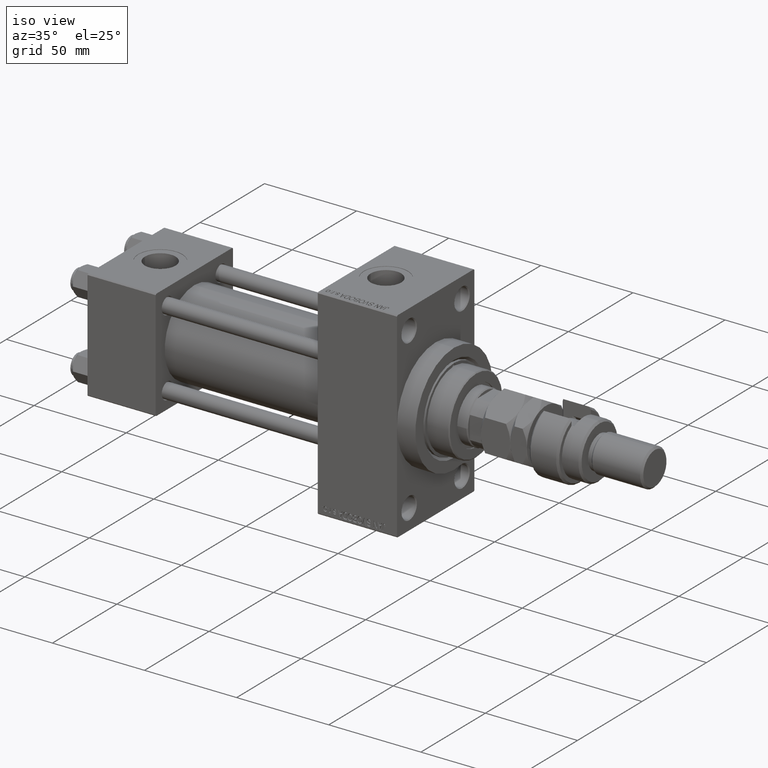
[diagram: clean part render]
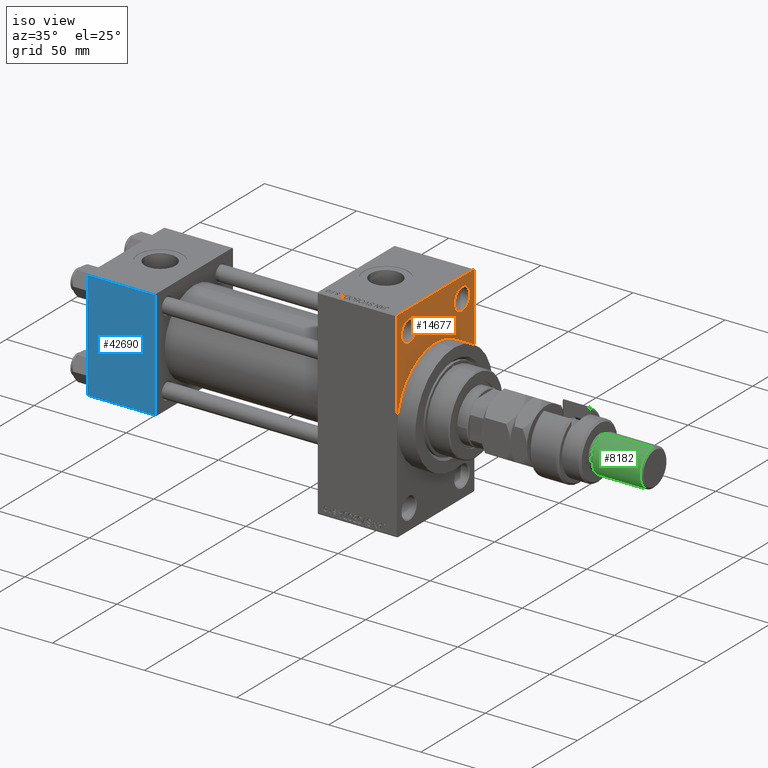
[diagram: same view with three faces highlighted in distinct colors, each labeled with its STEP entity id]
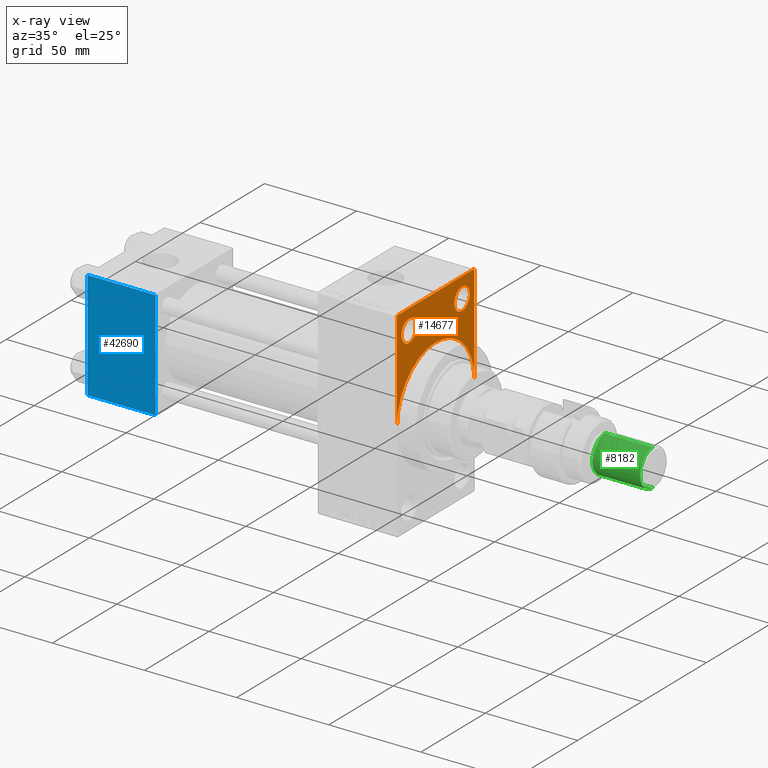
[diagram: x-ray of the same camera — body ghosted, the three highlighted faces saturated]
A machine part, iso view with three faces highlighted in distinct colors.
The next image is the same camera in x-ray (body ghosted, the three faces saturated) — at least one of them is partly hidden behind the body in this view.
Their STEP definitions:

[orange] entity #14677 — the highlighted planar face has unit normal (-1, 0, 0).
#308 = LINE ( 'NONE', #8523, #50527 ) ;
#1010 = EDGE_CURVE ( 'NONE', #13850, #32853, #50702, .T. ) ;
#1269 = CIRCLE ( 'NONE', #48655, 5.999999999999977796 ) ;
#1291 = VERTEX_POINT ( 'NONE', #45698 ) ;
#1770 = FACE_BOUND ( 'NONE', #16358, .T. ) ;
#3155 = CARTESIAN_POINT ( 'NONE',  ( 167.9999999999999716, 29.99999999999999645, 53.99999999999999289 ) ) ;
#4180 = CARTESIAN_POINT ( 'NONE',  ( 167.9999999999999716, 30.00000000000000000, 0.000000000000000000 ) ) ;
#4357 = DIRECTION ( 'NONE',  ( -1.000000000000000000, 0.000000000000000000, -0.000000000000000000 ) ) ;
#4601 = CIRCLE ( 'NONE', #26575, 5.999999999999977796 ) ;
#4877 = ORIENTED_EDGE ( 'NONE', *, *, #14673, .F. ) ;
#5125 = DIRECTION ( 'NONE',  ( 0.000000000000000000, -1.000000000000000000, 1.156482317317871478E-16 ) ) ;
#5320 = CIRCLE ( 'NONE', #49370, 5.999999999999977796 ) ;
#5382 = CARTESIAN_POINT ( 'NONE',  ( 167.9999999999999716, 29.99999999999999645, 54.49999999999999289 ) ) ;
#5755 = FACE_OUTER_BOUND ( 'NONE', #22417, .T. ) ;
#5840 = VECTOR ( 'NONE', #40932, 1000.000000000000000 ) ;
#6457 = AXIS2_PLACEMENT_3D ( 'NONE', #45786, #42597, #49756 ) ;
#6799 = VERTEX_POINT ( 'NONE', #11775 ) ;
#6861 = VERTEX_POINT ( 'NONE', #30001 ) ;
#6940 = DIRECTION ( 'NONE',  ( -0.000000000000000000, -0.7071067811865451302, -0.7071067811865500152 ) ) ;
#7407 = EDGE_CURVE ( 'NONE', #25722, #6861, #4601, .T. ) ;
#7445 = ORIENTED_EDGE ( 'NONE', *, *, #52254, .T. ) ;
#7814 = ORIENTED_EDGE ( 'NONE', *, *, #51615, .T. ) ;
#8336 = CARTESIAN_POINT ( 'NONE',  ( 167.9999999999999716, -20.50000000000000000, 43.50000000000000000 ) ) ;
#8523 = CARTESIAN_POINT ( 'NONE',  ( 167.9999999999999716, -30.00000000000000000, 54.50000000000000000 ) ) ;
#9322 = EDGE_CURVE ( 'NONE', #33347, #13850, #41693, .T. ) ;
#9326 = DIRECTION ( 'NONE',  ( 0.000000000000000000, 0.000000000000000000, -1.000000000000000000 ) ) ;
#9857 = CIRCLE ( 'NONE', #6457, 30.00000000000000000 ) ;
#10254 = CARTESIAN_POINT ( 'NONE',  ( 167.9999999999999716, 0.000000000000000000, 0.000000000000000000 ) ) ;
#11717 = DIRECTION ( 'NONE',  ( -1.000000000000000000, 0.000000000000000000, -0.000000000000000000 ) ) ;
#11775 = CARTESIAN_POINT ( 'NONE',  ( 167.9999999999999716, 0.000000000000000000, 30.00000000000000000 ) ) ;
#12342 = VERTEX_POINT ( 'NONE', #4180 ) ;
#13062 = ORIENTED_EDGE ( 'NONE', *, *, #7407, .T. ) ;
#13486 = DIRECTION ( 'NONE',  ( -1.000000000000000000, 0.000000000000000000, -0.000000000000000000 ) ) ;
#13850 = VERTEX_POINT ( 'NONE', #29851 ) ;
#14243 = FACE_BOUND ( 'NONE', #32784, .T. ) ;
#14673 = EDGE_CURVE ( 'NONE', #6799, #30046, #9857, .T. ) ;
#14677 = ADVANCED_FACE ( 'NONE', ( #14243, #1770, #5755 ), #38080, .F. ) ;
#14787 = LINE ( 'NONE', #50839, #17130 ) ;
#15778 = CARTESIAN_POINT ( 'NONE',  ( 167.9999999999999716, 29.99999999999999645, 54.49999999999999289 ) ) ;
#15839 = VECTOR ( 'NONE', #6940, 1000.000000000000114 ) ;
#16358 = EDGE_LOOP ( 'NONE', ( #13062, #41066 ) ) ;
#16529 = VECTOR ( 'NONE', #5125, 1000.000000000000000 ) ;
#16685 = ORIENTED_EDGE ( 'NONE', *, *, #46154, .T. ) ;
#17130 = VECTOR ( 'NONE', #35159, 1000.000000000000000 ) ;
#17974 = DIRECTION ( 'NONE',  ( 0.000000000000000000, 0.000000000000000000, 1.000000000000000000 ) ) ;
#18877 = CARTESIAN_POINT ( 'NONE',  ( 167.9999999999999716, -30.00000000000000000, 53.99999999999997158 ) ) ;
#19194 = CARTESIAN_POINT ( 'NONE',  ( 167.9999999999999716, -30.00000000000000000, 0.000000000000000000 ) ) ;
#20864 = EDGE_CURVE ( 'NONE', #12342, #6799, #40536, .T. ) ;
#21453 = ORIENTED_EDGE ( 'NONE', *, *, #1010, .T. ) ;
#21948 = CARTESIAN_POINT ( 'NONE',  ( 167.9999999999999716, 20.50000000000000000, 43.50000000000000000 ) ) ;
#22417 = EDGE_LOOP ( 'NONE', ( #23078, #21453, #7814, #4877, #43996, #46005, #44222 ) ) ;
#22696 = DIRECTION ( 'NONE',  ( -0.000000000000000000, 0.000000000000000000, 1.000000000000000000 ) ) ;
#23078 = ORIENTED_EDGE ( 'NONE', *, *, #9322, .T. ) ;
#23413 = CIRCLE ( 'NONE', #29349, 5.999999999999977796 ) ;
#24668 = DIRECTION ( 'NONE',  ( 0.000000000000000000, 0.000000000000000000, -1.000000000000000000 ) ) ;
#24917 = DIRECTION ( 'NONE',  ( 0.000000000000000000, 0.000000000000000000, 1.000000000000000000 ) ) ;
#25079 = AXIS2_PLACEMENT_3D ( 'NONE', #10254, #26137, #22696 ) ;
#25722 = VERTEX_POINT ( 'NONE', #25937 ) ;
#25731 = CARTESIAN_POINT ( 'NONE',  ( 167.9999999999999716, 0.000000000000000000, 0.000000000000000000 ) ) ;
#25937 = CARTESIAN_POINT ( 'NONE',  ( 167.9999999999999716, 20.50000000000000000, 37.50000000000002132 ) ) ;
#26137 = DIRECTION ( 'NONE',  ( -1.000000000000000000, 0.000000000000000000, -0.000000000000000000 ) ) ;
#26575 = AXIS2_PLACEMENT_3D ( 'NONE', #21948, #38111, #17974 ) ;
#29349 = AXIS2_PLACEMENT_3D ( 'NONE', #8336, #4357, #31920 ) ;
#29849 = EDGE_CURVE ( 'NONE', #31253, #12342, #40405, .T. ) ;
#29851 = CARTESIAN_POINT ( 'NONE',  ( 167.9999999999999716, -29.49999999999997513, 54.50000000000000000 ) ) ;
#30001 = CARTESIAN_POINT ( 'NONE',  ( 167.9999999999999716, 20.50000000000000000, 49.49999999999997158 ) ) ;
#30046 = VERTEX_POINT ( 'NONE', #19194 ) ;
#31253 = VERTEX_POINT ( 'NONE', #3155 ) ;
#31920 = DIRECTION ( 'NONE',  ( 0.000000000000000000, 0.000000000000000000, 1.000000000000000000 ) ) ;
#32645 = DIRECTION ( 'NONE',  ( 1.000000000000000000, 0.000000000000000000, 0.000000000000000000 ) ) ;
#32784 = EDGE_LOOP ( 'NONE', ( #7445, #16685 ) ) ;
#32853 = VERTEX_POINT ( 'NONE', #36445 ) ;
#33347 = VERTEX_POINT ( 'NONE', #33370 ) ;
#33370 = CARTESIAN_POINT ( 'NONE',  ( 167.9999999999999716, 29.50000000000002132, 54.49999999999999289 ) ) ;
#33755 = AXIS2_PLACEMENT_3D ( 'NONE', #25731, #32645, #9326 ) ;
#33868 = CARTESIAN_POINT ( 'NONE',  ( 167.9999999999999716, 20.50000000000000000, 43.50000000000000000 ) ) ;
#35159 = DIRECTION ( 'NONE',  ( 0.000000000000000000, -0.7071067811865279218, 0.7071067811865671127 ) ) ;
#36445 = CARTESIAN_POINT ( 'NONE',  ( 167.9999999999999716, -30.00000000000000000, 53.99999999999997158 ) ) ;
#38080 = PLANE ( 'NONE',  #25079 ) ;
#38111 = DIRECTION ( 'NONE',  ( -1.000000000000000000, 0.000000000000000000, -0.000000000000000000 ) ) ;
#40405 = LINE ( 'NONE', #15778, #5840 ) ;
#40536 = CIRCLE ( 'NONE', #33755, 30.00000000000000000 ) ;
#40932 = DIRECTION ( 'NONE',  ( 0.000000000000000000, 0.000000000000000000, -1.000000000000000000 ) ) ;
#41066 = ORIENTED_EDGE ( 'NONE', *, *, #50022, .T. ) ;
#41400 = EDGE_CURVE ( 'NONE', #31253, #33347, #14787, .T. ) ;
#41693 = LINE ( 'NONE', #5382, #16529 ) ;
#42103 = DIRECTION ( 'NONE',  ( 0.000000000000000000, 0.000000000000000000, 1.000000000000000000 ) ) ;
#42597 = DIRECTION ( 'NONE',  ( 1.000000000000000000, 0.000000000000000000, 0.000000000000000000 ) ) ;
#43996 = ORIENTED_EDGE ( 'NONE', *, *, #20864, .F. ) ;
#44222 = ORIENTED_EDGE ( 'NONE', *, *, #41400, .T. ) ;
#45049 = VERTEX_POINT ( 'NONE', #45670 ) ;
#45670 = CARTESIAN_POINT ( 'NONE',  ( 167.9999999999999716, -20.50000000000000000, 37.50000000000002132 ) ) ;
#45698 = CARTESIAN_POINT ( 'NONE',  ( 167.9999999999999716, -20.50000000000000000, 49.49999999999997158 ) ) ;
#45786 = CARTESIAN_POINT ( 'NONE',  ( 167.9999999999999716, 0.000000000000000000, 0.000000000000000000 ) ) ;
#46005 = ORIENTED_EDGE ( 'NONE', *, *, #29849, .F. ) ;
#46154 = EDGE_CURVE ( 'NONE', #1291, #45049, #5320, .T. ) ;
#48552 = CARTESIAN_POINT ( 'NONE',  ( 167.9999999999999716, -20.50000000000000000, 43.50000000000000000 ) ) ;
#48655 = AXIS2_PLACEMENT_3D ( 'NONE', #33868, #13486, #42103 ) ;
#49370 = AXIS2_PLACEMENT_3D ( 'NONE', #48552, #11717, #24917 ) ;
#49756 = DIRECTION ( 'NONE',  ( 0.000000000000000000, 0.000000000000000000, -1.000000000000000000 ) ) ;
#50022 = EDGE_CURVE ( 'NONE', #6861, #25722, #1269, .T. ) ;
#50527 = VECTOR ( 'NONE', #24668, 1000.000000000000000 ) ;
#50702 = LINE ( 'NONE', #18877, #15839 ) ;
#50839 = CARTESIAN_POINT ( 'NONE',  ( 167.9999999999999716, 29.50000000000002132, 54.49999999999999289 ) ) ;
#51615 = EDGE_CURVE ( 'NONE', #32853, #30046, #308, .T. ) ;
#52254 = EDGE_CURVE ( 'NONE', #45049, #1291, #23413, .T. ) ;

[blue] entity #42690 — the highlighted planar face has unit normal (0, 1, 0).
#1469 = CARTESIAN_POINT ( 'NONE',  ( 37.00000000000000000, -30.00000000000000000, -29.50000000000001776 ) ) ;
#1779 = ORIENTED_EDGE ( 'NONE', *, *, #4598, .T. ) ;
#2320 = CARTESIAN_POINT ( 'NONE',  ( 37.00000000000000000, -30.00000000000000000, 29.99999999999999289 ) ) ;
#2392 = EDGE_LOOP ( 'NONE', ( #1779, #21702, #51970, #34545 ) ) ;
#3614 = VECTOR ( 'NONE', #32287, 1000.000000000000000 ) ;
#4090 = LINE ( 'NONE', #32968, #23452 ) ;
#4598 = EDGE_CURVE ( 'NONE', #32858, #44401, #19764, .T. ) ;
#11558 = CARTESIAN_POINT ( 'NONE',  ( 0.000000000000000000, -30.00000000000000000, 29.49999999999999289 ) ) ;
#14217 = CARTESIAN_POINT ( 'NONE',  ( 37.00000000000000000, -30.00000000000000000, -29.50000000000001776 ) ) ;
#16274 = DIRECTION ( 'NONE',  ( -0.000000000000000000, 1.000000000000000000, 0.000000000000000000 ) ) ;
#17641 = DIRECTION ( 'NONE',  ( 1.000000000000000000, 0.000000000000000000, 0.000000000000000000 ) ) ;
#19764 = LINE ( 'NONE', #44676, #42575 ) ;
#21702 = ORIENTED_EDGE ( 'NONE', *, *, #50325, .T. ) ;
#23452 = VECTOR ( 'NONE', #49156, 1000.000000000000000 ) ;
#26673 = CARTESIAN_POINT ( 'NONE',  ( 0.000000000000000000, -30.00000000000000000, -29.50000000000001776 ) ) ;
#28921 = VERTEX_POINT ( 'NONE', #14217 ) ;
#32287 = DIRECTION ( 'NONE',  ( 0.000000000000000000, 0.000000000000000000, -1.000000000000000000 ) ) ;
#32858 = VERTEX_POINT ( 'NONE', #11558 ) ;
#32968 = CARTESIAN_POINT ( 'NONE',  ( 37.00000000000000000, -30.00000000000000000, 29.49999999999999289 ) ) ;
#34545 = ORIENTED_EDGE ( 'NONE', *, *, #52295, .T. ) ;
#34907 = FACE_OUTER_BOUND ( 'NONE', #2392, .T. ) ;
#35681 = VERTEX_POINT ( 'NONE', #36260 ) ;
#36177 = DIRECTION ( 'NONE',  ( 0.000000000000000000, 0.000000000000000000, -1.000000000000000000 ) ) ;
#36260 = CARTESIAN_POINT ( 'NONE',  ( 37.00000000000000000, -30.00000000000000000, 29.49999999999999289 ) ) ;
#39871 = PLANE ( 'NONE',  #49377 ) ;
#42440 = EDGE_CURVE ( 'NONE', #35681, #28921, #48230, .T. ) ;
#42575 = VECTOR ( 'NONE', #36177, 1000.000000000000000 ) ;
#42690 = ADVANCED_FACE ( 'NONE', ( #34907 ), #39871, .F. ) ;
#44401 = VERTEX_POINT ( 'NONE', #26673 ) ;
#44676 = CARTESIAN_POINT ( 'NONE',  ( 0.000000000000000000, -30.00000000000000000, 29.99999999999999289 ) ) ;
#44771 = CARTESIAN_POINT ( 'NONE',  ( 37.00000000000000000, -30.00000000000000000, 29.99999999999999289 ) ) ;
#46014 = LINE ( 'NONE', #1469, #46998 ) ;
#46998 = VECTOR ( 'NONE', #17641, 1000.000000000000000 ) ;
#48230 = LINE ( 'NONE', #44771, #3614 ) ;
#49156 = DIRECTION ( 'NONE',  ( -1.000000000000000000, 0.000000000000000000, 0.000000000000000000 ) ) ;
#49377 = AXIS2_PLACEMENT_3D ( 'NONE', #2320, #16274, #52337 ) ;
#50325 = EDGE_CURVE ( 'NONE', #44401, #28921, #46014, .T. ) ;
#51970 = ORIENTED_EDGE ( 'NONE', *, *, #42440, .F. ) ;
#52295 = EDGE_CURVE ( 'NONE', #35681, #32858, #4090, .T. ) ;
#52337 = DIRECTION ( 'NONE',  ( 0.000000000000000000, -0.000000000000000000, 1.000000000000000000 ) ) ;

[green] entity #8182 — the highlighted cylindrical surface (edge-blend (fillet) strip) has radius 10 mm, axis along (-1, -0, 0).
#633 = VERTEX_POINT ( 'NONE', #1454 ) ;
#1454 = CARTESIAN_POINT ( 'NONE',  ( 10.00000000000000000, 1.224646799147353256E-15, 29.00000000000000711 ) ) ;
#3838 = VECTOR ( 'NONE', #42253, 1000.000000000000000 ) ;
#5063 = CIRCLE ( 'NONE', #33024, 10.00000000000000000 ) ;
#6321 = DIRECTION ( 'NONE',  ( -1.000000000000000000, 0.000000000000000000, 0.000000000000000000 ) ) ;
#8182 = ADVANCED_FACE ( 'NONE', ( #15328 ), #35179, .T. ) ;
#8544 = CARTESIAN_POINT ( 'NONE',  ( -10.00000000000000000, 0.000000000000000000, 29.00000000000000711 ) ) ;
#10014 = DIRECTION ( 'NONE',  ( 1.000000000000000000, 0.000000000000000000, 0.000000000000000000 ) ) ;
#10468 = EDGE_CURVE ( 'NONE', #34698, #25370, #47012, .T. ) ;
#10553 = DIRECTION ( 'NONE',  ( -0.000000000000000000, -0.000000000000000000, -1.000000000000000000 ) ) ;
#13624 = DIRECTION ( 'NONE',  ( 1.000000000000000000, 0.000000000000000000, 0.000000000000000000 ) ) ;
#14936 = CARTESIAN_POINT ( 'NONE',  ( -10.00000000000000000, 0.000000000000000000, 56.00000000000000711 ) ) ;
#15328 = FACE_OUTER_BOUND ( 'NONE', #31082, .T. ) ;
#16577 = ORIENTED_EDGE ( 'NONE', *, *, #35111, .F. ) ;
#17385 = VERTEX_POINT ( 'NONE', #33164 ) ;
#18878 = CARTESIAN_POINT ( 'NONE',  ( 10.00000000000000000, 1.224646799147353256E-15, 56.00000000000000711 ) ) ;
#19274 = CARTESIAN_POINT ( 'NONE',  ( -10.00000000000000000, 0.000000000000000000, 54.99999999999998579 ) ) ;
#20332 = ORIENTED_EDGE ( 'NONE', *, *, #10468, .T. ) ;
#24245 = AXIS2_PLACEMENT_3D ( 'NONE', #33467, #38244, #13624 ) ;
#25370 = VERTEX_POINT ( 'NONE', #8544 ) ;
#27070 = LINE ( 'NONE', #18878, #44848 ) ;
#31082 = EDGE_LOOP ( 'NONE', ( #16577, #32944, #20332, #41489 ) ) ;
#31458 = CARTESIAN_POINT ( 'NONE',  ( 0.000000000000000000, 0.000000000000000000, 56.00000000000000711 ) ) ;
#32944 = ORIENTED_EDGE ( 'NONE', *, *, #35712, .T. ) ;
#33024 = AXIS2_PLACEMENT_3D ( 'NONE', #41821, #33582, #10014 ) ;
#33164 = CARTESIAN_POINT ( 'NONE',  ( 10.00000000000000000, 1.224646799147353256E-15, 54.99999999999998579 ) ) ;
#33467 = CARTESIAN_POINT ( 'NONE',  ( 0.000000000000000000, 0.000000000000000000, 29.00000000000000711 ) ) ;
#33582 = DIRECTION ( 'NONE',  ( 0.000000000000000000, 0.000000000000000000, -1.000000000000000000 ) ) ;
#34511 = DIRECTION ( 'NONE',  ( -0.000000000000000000, -0.000000000000000000, -1.000000000000000000 ) ) ;
#34698 = VERTEX_POINT ( 'NONE', #19274 ) ;
#35111 = EDGE_CURVE ( 'NONE', #17385, #633, #27070, .T. ) ;
#35179 = CYLINDRICAL_SURFACE ( 'NONE', #52075, 10.00000000000000000 ) ;
#35712 = EDGE_CURVE ( 'NONE', #17385, #34698, #5063, .T. ) ;
#38244 = DIRECTION ( 'NONE',  ( -0.000000000000000000, -0.000000000000000000, 1.000000000000000000 ) ) ;
#41489 = ORIENTED_EDGE ( 'NONE', *, *, #51477, .T. ) ;
#41821 = CARTESIAN_POINT ( 'NONE',  ( 0.000000000000000000, 0.000000000000000000, 54.99999999999998579 ) ) ;
#42253 = DIRECTION ( 'NONE',  ( -0.000000000000000000, -0.000000000000000000, -1.000000000000000000 ) ) ;
#42895 = CIRCLE ( 'NONE', #24245, 10.00000000000000000 ) ;
#44848 = VECTOR ( 'NONE', #34511, 1000.000000000000000 ) ;
#47012 = LINE ( 'NONE', #14936, #3838 ) ;
#51477 = EDGE_CURVE ( 'NONE', #25370, #633, #42895, .T. ) ;
#52075 = AXIS2_PLACEMENT_3D ( 'NONE', #31458, #10553, #6321 ) ;